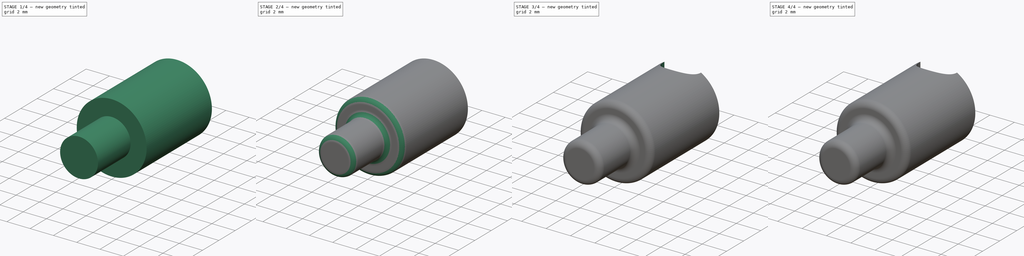
[diagram: build sequence overview — one tinted view per stage of 4, left to right]
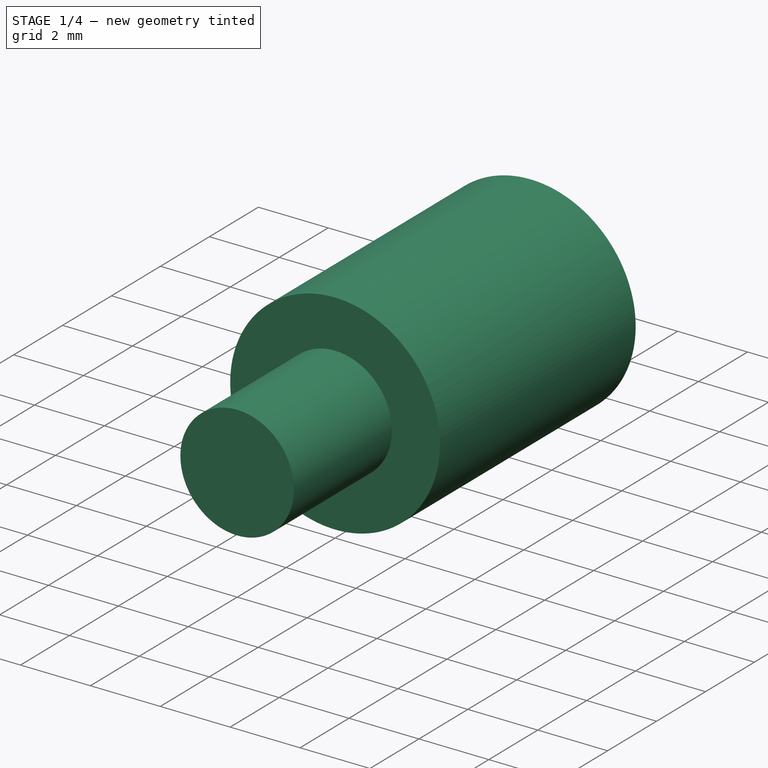
[diagram: stage 1 of 4 — iso view after this stage's code; geometry added in this stage tinted green]
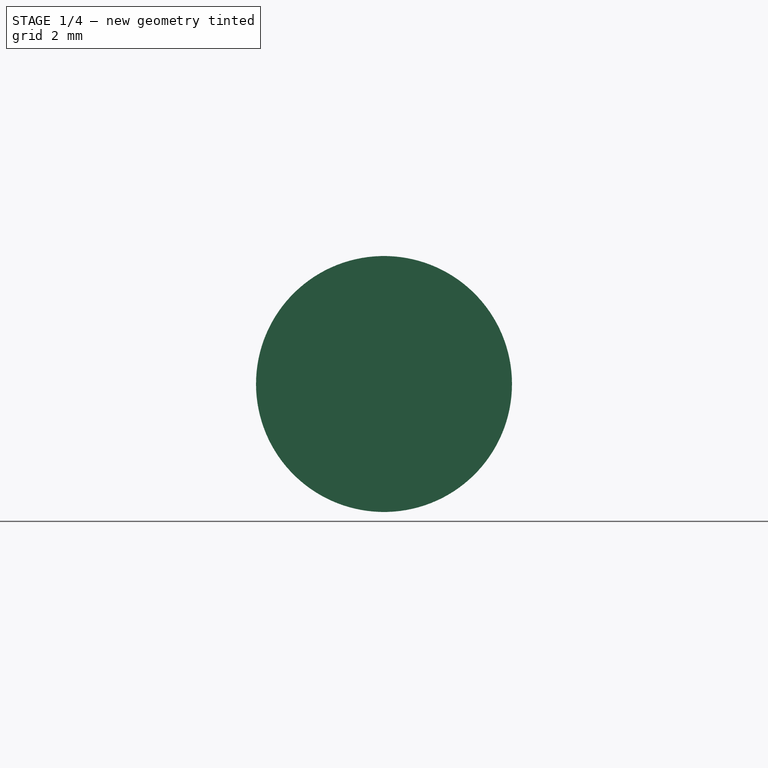
[diagram: stage 1 of 4 — front view after this stage's code; geometry added in this stage tinted green]
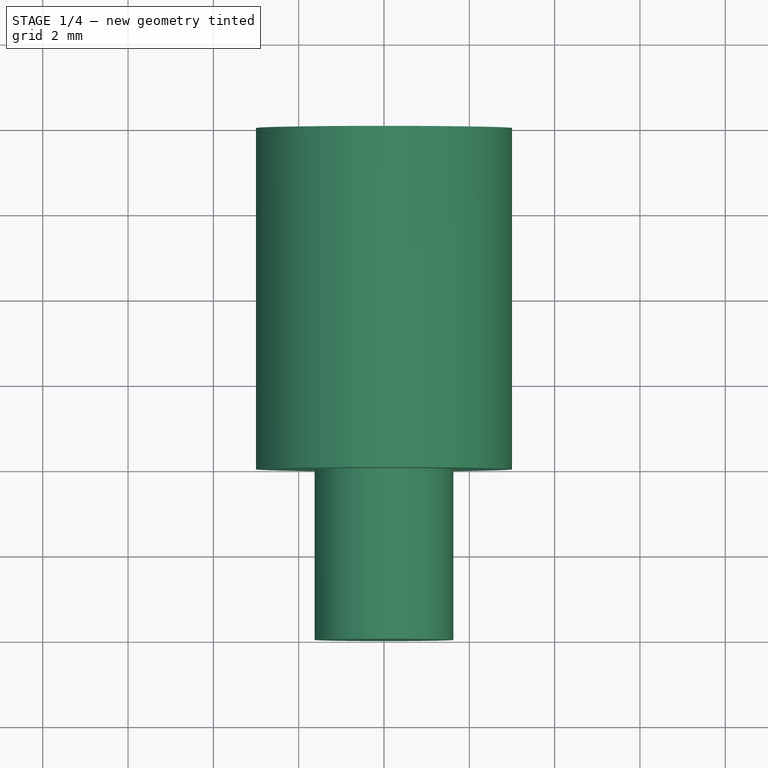
[diagram: stage 1 of 4 — top view after this stage's code; geometry added in this stage tinted green]
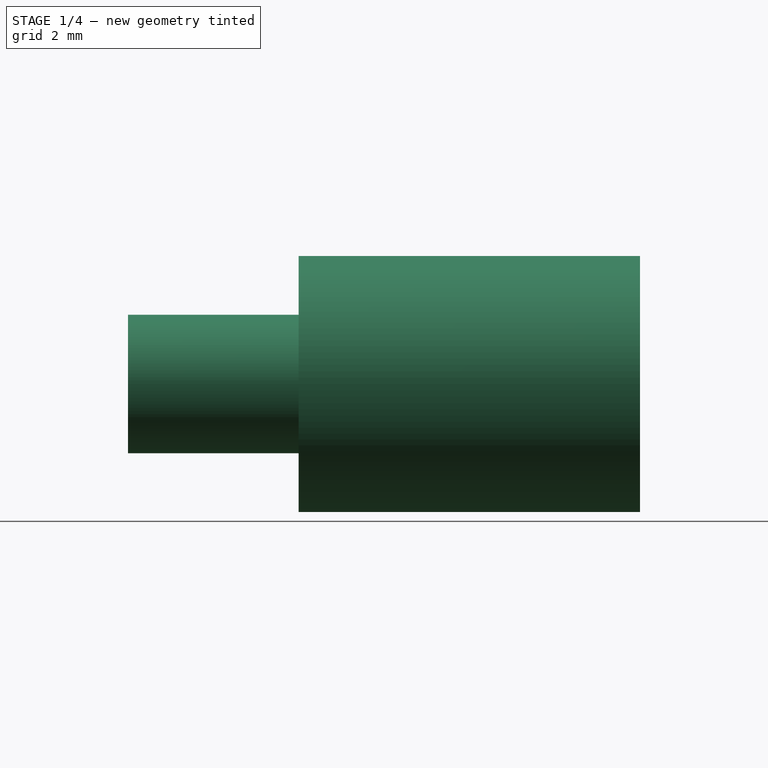
[diagram: stage 1 of 4 — right view after this stage's code; geometry added in this stage tinted green]
FCSTD DOCUMENT  (FreeCAD 0.20RUnknown)
Label: temperature-probes
License: All rights reserved
LicenseURL: http://en.wikipedia.org/wiki/All_rights_reserved
objects: Sketcher::SketchObject×11, PartDesign::Body×5, PartDesign::Pad×4, PartDesign::Pocket×3, PartDesign::Fillet×3, PartDesign::AdditivePipe×2, App::Part×2
note: 40 computed .brp shape members not serialized (recipe doc carries the construction recipe); baked Part::Feature solids carry a one-line shape summary decoded from their .brp

FEATURE [PartDesign::Body] Body004  label="ptf-lead001"
  Group = -> [Sketch008,Sketch009,AdditivePipe001]
  Origin = -> Origin006
  Placement = pos=(0,0,0.75) rot=(0,1,0;3.14159rad)
  Tip = -> AdditivePipe001
FEATURE [App::Part] Part  label="PTFC"
  Group = -> [Body,Body001,Body002,Body004]
  Origin = -> Origin
FEATURE [Sketcher::SketchObject] Sketch010
  FullyConstrained = true
  MapMode = 5
  Placement = pos=(0,0,0) rot=(1,0,0;1.5708rad)
  Support = -> [XZ_Plane007]
  sketch-geometry (1):
    g0: Circle CenterX=0 CenterY=0.2 CenterZ=0 NormalX=0 NormalY=0 NormalZ=1 AngleXU=0 Radius=3
  constraints (3):
    c: PointOnObject(g0,g-2)
    c: DistanceY(g-1,g0) = 0.2
    c: Diameter(g0) = 6
FEATURE [PartDesign::Pad] Pad002
  Direction = (0,-1,2e-16)
  Length = 8
  Length2 = 10
  Placement = pos=(0,0,0) rot=(1,0,0;1.5708rad)
  Profile = -> Sketch010
  ReferenceAxis = -> Sketch010 [N_Axis]
  Reversed = true
  Type = 0
FEATURE [Sketcher::SketchObject] Sketch011
  FullyConstrained = true
  MapMode = 5
  Placement = pos=(0,0,0) rot=(1,0,0;1.5708rad)
  Support = -> [XZ_Plane007]
  sketch-geometry (1):
    g0: Circle CenterX=0 CenterY=0.2 CenterZ=0 NormalX=0 NormalY=0 NormalZ=1 AngleXU=0 Radius=1.625
  constraints (3):
    c: PointOnObject(g0,g-2)
    c: DistanceY(g-1,g0) = 0.2
    c: Diameter(g0) = 3.25
FEATURE [PartDesign::Pad] Pad003
  BaseFeature = -> Pad002
  Direction = (0,-1,2e-16)
  Length = 4
  Length2 = 10
  Placement = pos=(0,0,0) rot=(1,0,0;1.5708rad)
  Profile = -> Sketch011
  ReferenceAxis = -> Sketch011 [N_Axis]
  Type = 0
FEATURE [Sketcher::SketchObject] Sketch012
  AttachmentOffset = pos=(0,0,-1) rot=(0,0,1;0rad)
  FullyConstrained = true
  MapMode = 5
  Placement = pos=(0,1,2e-16) rot=(1,0,0;1.5708rad)
  Support = -> [XZ_Plane007]
  sketch-geometry (1):
    g0: Circle CenterX=0 CenterY=0.2 CenterZ=0 NormalX=0 NormalY=0 NormalZ=1 AngleXU=0 Radius=2.25
  constraints (3):
    c: PointOnObject(g0,g-2)
    c: DistanceY(g-1,g0) = 0.2
    c: Diameter(g0) = 4.5
FEATURE [PartDesign::Pocket] Pocket
  BaseFeature = -> Pad003
  Direction = (0,1,-2e-16)
  Length = 5
  Length2 = 5
  Placement = pos=(0,0,0) rot=(1,0,0;1.5708rad)
  Profile = -> Sketch012
  ReferenceAxis = -> Sketch012 [N_Axis]
  Type = 1
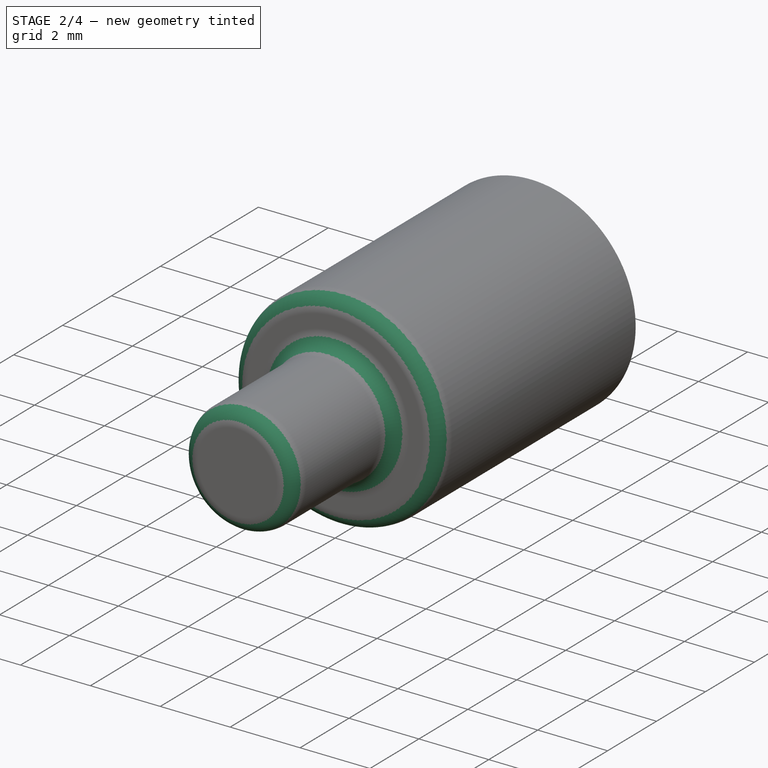
[diagram: stage 2 of 4 — iso view after this stage's code; geometry added in this stage tinted green]
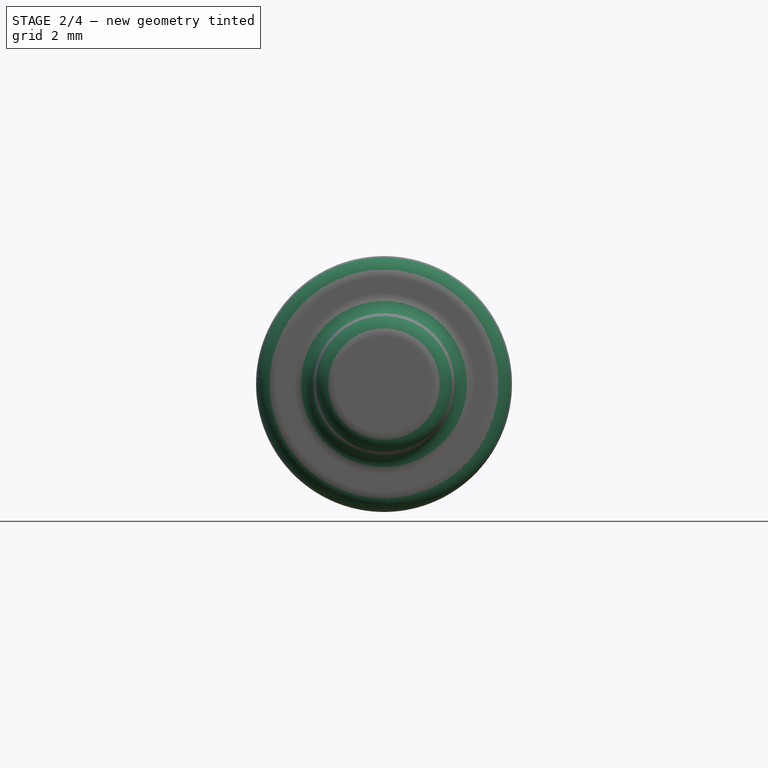
[diagram: stage 2 of 4 — front view after this stage's code; geometry added in this stage tinted green]
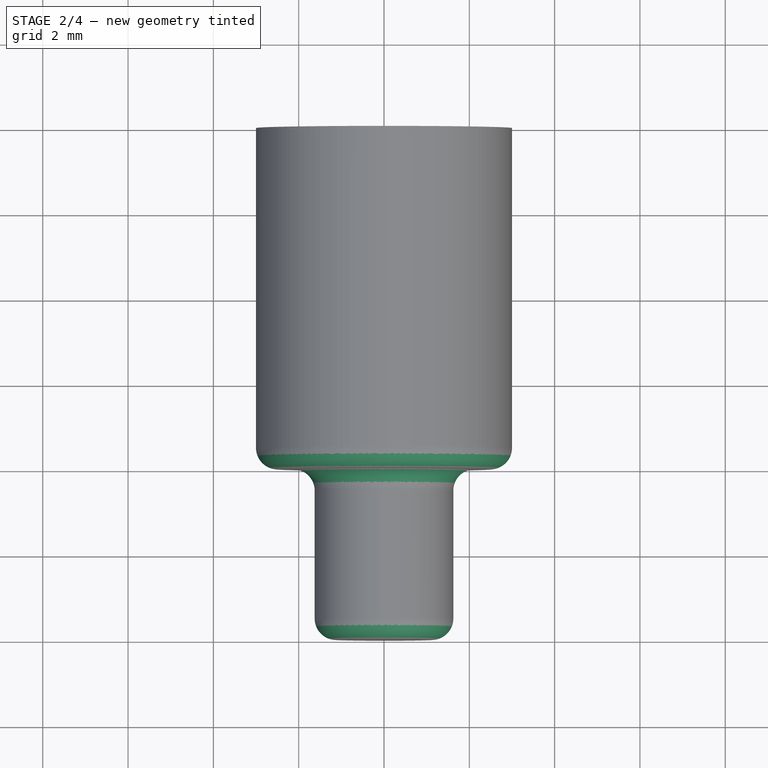
[diagram: stage 2 of 4 — top view after this stage's code; geometry added in this stage tinted green]
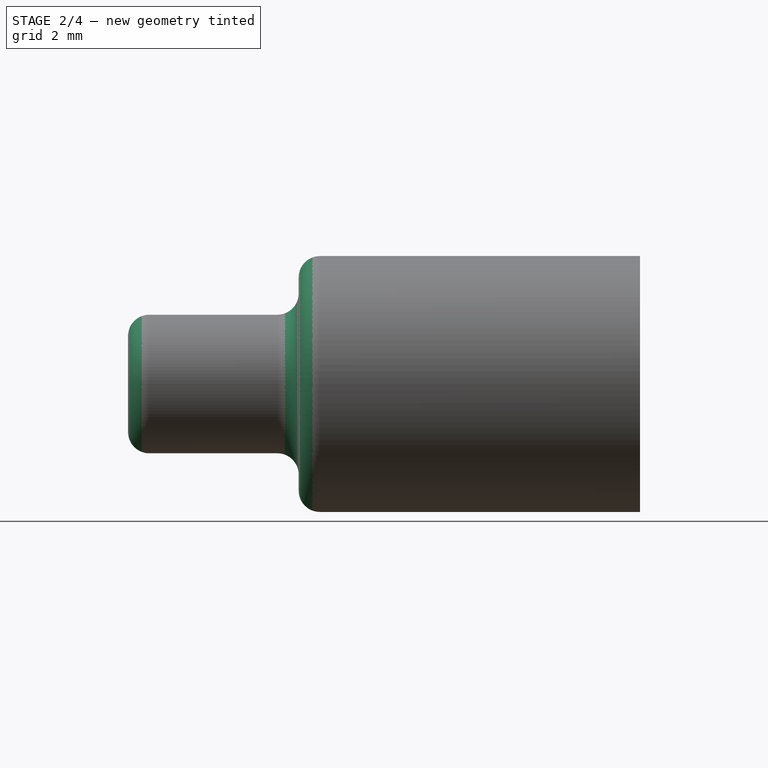
[diagram: stage 2 of 4 — right view after this stage's code; geometry added in this stage tinted green]
FEATURE [Sketcher::SketchObject] Sketch013
  AttachmentOffset = pos=(0,0,-1) rot=(0,0,1;0rad)
  FullyConstrained = true
  MapMode = 5
  Placement = pos=(0,1,2e-16) rot=(1,0,0;1.5708rad)
  Support = -> [XZ_Plane007]
  sketch-geometry (1):
    g0: Circle CenterX=0 CenterY=0.2 CenterZ=0 NormalX=0 NormalY=0 NormalZ=1 AngleXU=0 Radius=1.25
  constraints (3):
    c: PointOnObject(g0,g-2)
    c: DistanceY(g-1,g0) = 0.2
    c: Diameter(g0) = 2.5
FEATURE [PartDesign::Pocket] Pocket001
  BaseFeature = -> Pocket
  Direction = (0,1,-2e-16)
  Length = 4.5
  Length2 = 5
  Placement = pos=(0,0,0) rot=(1,0,0;1.5708rad)
  Profile = -> Sketch013
  ReferenceAxis = -> Sketch013 [N_Axis]
  Reversed = true
  Type = 0
FEATURE [PartDesign::Fillet] Fillet
  Base = -> Pocket001 [Edge7,Edge4,Edge2]
  BaseFeature = -> Pocket001
  Placement = pos=(0,0,0) rot=(1,0,0;1.5708rad)
  Radius = 0.5
  SupportTransform = false
  UseAllEdges = false
FEATURE [PartDesign::Fillet] Fillet001
  Base = -> Fillet [Edge16]
  BaseFeature = -> Fillet
  Placement = pos=(0,0,0) rot=(1,0,0;1.5708rad)
  Radius = 1
  SupportTransform = false
  UseAllEdges = false
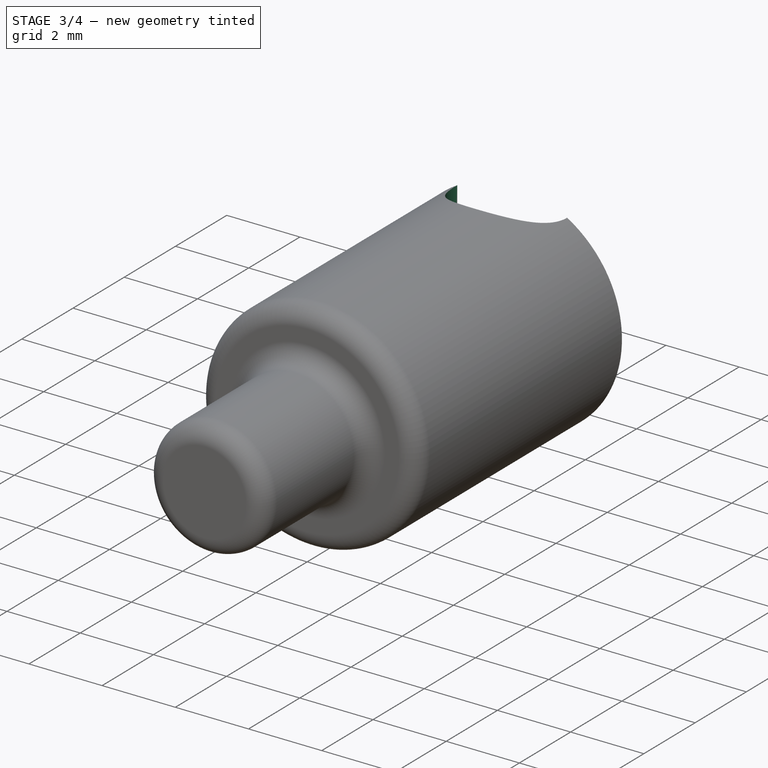
[diagram: stage 3 of 4 — iso view after this stage's code; geometry added in this stage tinted green]
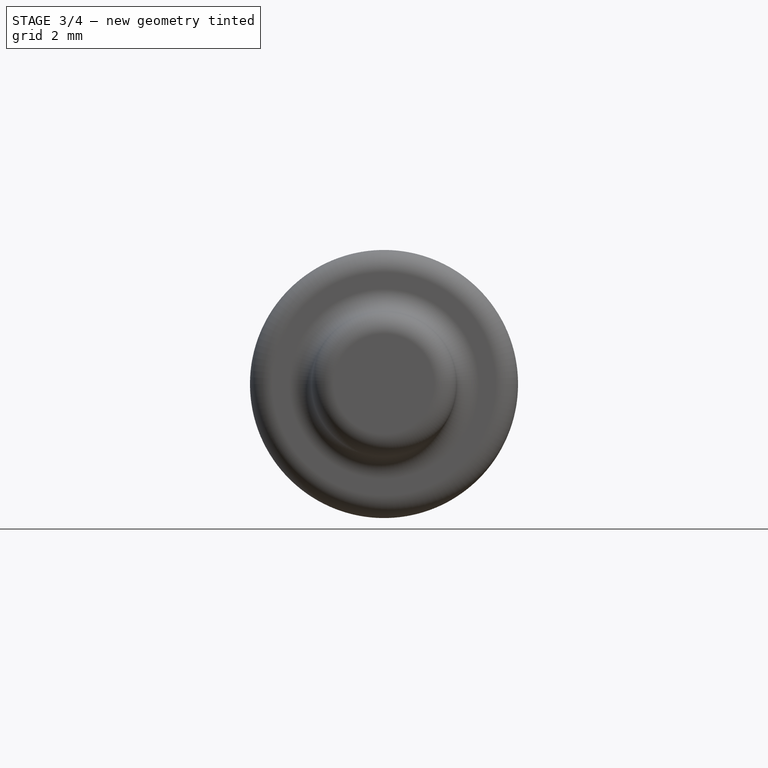
[diagram: stage 3 of 4 — front view after this stage's code; geometry added in this stage tinted green]
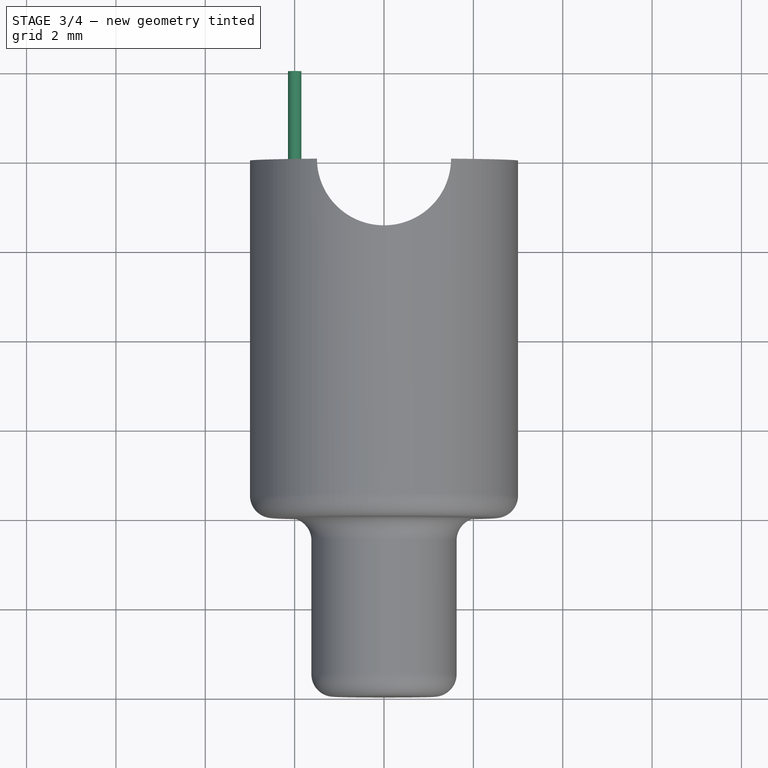
[diagram: stage 3 of 4 — top view after this stage's code; geometry added in this stage tinted green]
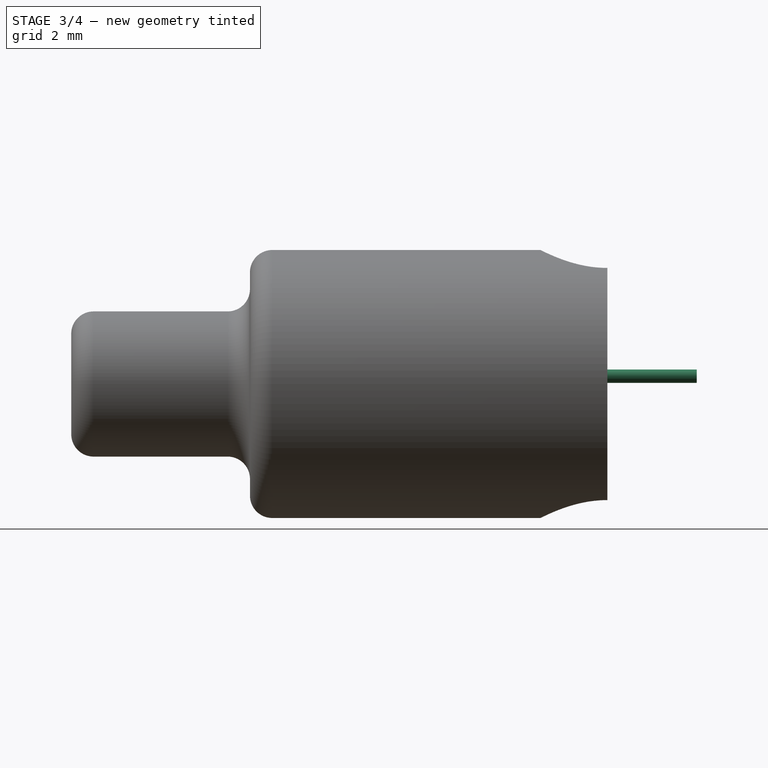
[diagram: stage 3 of 4 — right view after this stage's code; geometry added in this stage tinted green]
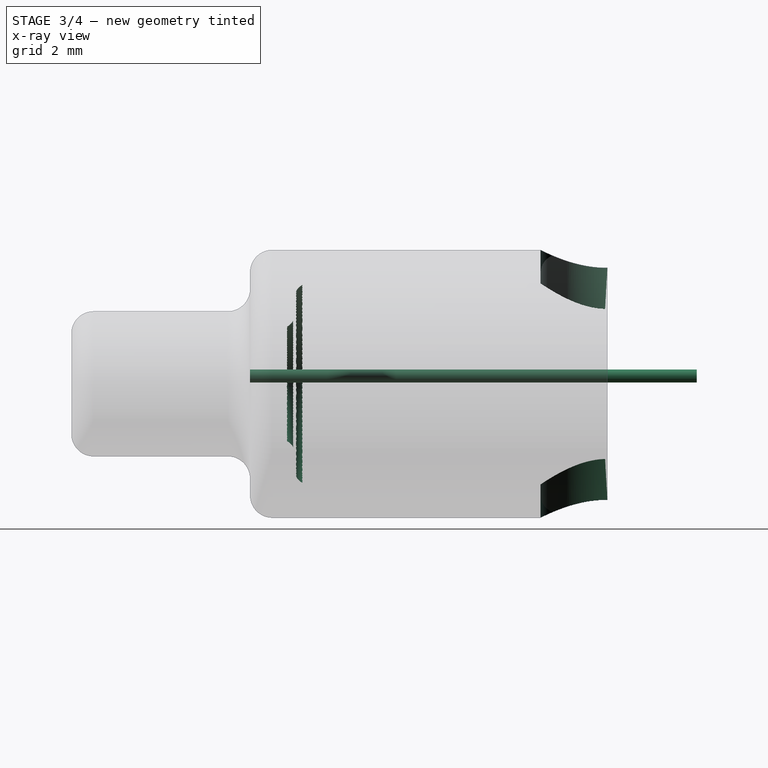
[diagram: stage 3 of 4 — x-ray composite at the right view; earlier geometry ghosted, this stage's added geometry solid]
FEATURE [PartDesign::Body] Body002  label="ptf-lead"
  Group = -> [Sketch002,Sketch007,AdditivePipe]
  Origin = -> Origin003
  Tip = -> AdditivePipe
FEATURE [Sketcher::SketchObject] Sketch008
  FullyConstrained = true
  MapMode = 5
  Placement = pos=(0,0,0) rot=(1,0,0;1.5708rad)
  Support = -> [XZ_Plane003]
  sketch-geometry (3):
    g0: Circle CenterX=-0.45 CenterY=0.375 CenterZ=0 NormalX=0 NormalY=0 NormalZ=1 AngleXU=0 Radius=0.15
    g1: LineSegment StartX=-0.45 StartY=0.375 StartZ=0 EndX=0.45 EndY=0.375 EndZ=0
    g2: GeomPoint X=0 Y=0.375 Z=0
  constraints (7):
    c: Diameter(g0) = 0.3
    c: Horizontal(g1)
    c: Coincident(g0,g1)
    c: DistanceX(g1,g1) = 0.9
    c: Symmetric(g1,g1,g2)
    c: PointOnObject(g2,g-2)
    c: DistanceY(g-1,g2) = 0.375
FEATURE [Sketcher::SketchObject] Sketch009
  AttachmentOffset = pos=(0,0,0.375) rot=(0,0,1;0rad)
  ExternalGeometry = -> [Sketch008]
  FullyConstrained = true
  MapMode = 5
  Placement = pos=(0,0,0.375) rot=(0,0,1;0rad)
  Support = -> [XY_Plane003]
  sketch-geometry (7):
    g0: LineSegment StartX=-0.45 StartY=0 StartZ=0 EndX=-0.45 EndY=1.72755 EndZ=0
    g1: LineSegment StartX=-0.678937 StartY=2.1477 StartZ=0 EndX=-1.77106 EndY=2.8523 EndZ=0
    g2: LineSegment StartX=-2 StartY=3.27245 StartZ=0 EndX=-2 EndY=10 EndZ=0
    g3: ArcOfCircle CenterX=-0.95 CenterY=1.72755 CenterZ=0 NormalX=0 NormalY=0 NormalZ=1 AngleXU=0 Radius=0.5 StartAngle=1e-16 EndAngle=0.99783
    g4: GeomPoint X=-0.45 Y=2 Z=0
    g5: ArcOfCircle CenterX=-1.5 CenterY=3.27245 CenterZ=0 NormalX=0 NormalY=0 NormalZ=1 AngleXU=0 Radius=0.5 StartAngle=3.14159 EndAngle=4.13942
    g6: GeomPoint X=-2 Y=3 Z=0
  constraints (18):
    c: PointOnObject(g0,g-1)
    c: Vertical(g0)
    c: Vertical(g2)
    c: DistanceX(g0,g-1) = 0.45
    c: Distance(g2,g6) = 7
    c: Distance(g0,g4) = 2
    c: DistanceX(g2,g-1) = 2
    c: DistanceY(g-1,g2) = 10
    c: PointOnObject(g4,g0)
    c: PointOnObject(g4,g1)
    c: Tangent(g0,g3) = -1.5708
    c: Tangent(g1,g3) = -1.5708
    c: PointOnObject(g6,g1)
    c: PointOnObject(g6,g2)
    c: Tangent(g1,g5) = 1.5708
    c: Tangent(g2,g5) = 1.5708
    c: Equal(g5,g3)
    c: Radius(g3) = 0.5
FEATURE [PartDesign::AdditivePipe] AdditivePipe001
  AuxilleryCurvelinear = true
  AuxillerySpineTangent = false
  Binormal = (0,0,0)
  Mode = 0
  Placement = pos=(0,0,0) rot=(1,0,0;1.5708rad)
  Profile = -> Sketch008
  Spine = -> Sketch009
  SpineTangent = false
  Transformation = 0
  Transition = 0
FEATURE [PartDesign::Fillet] Fillet002
  Base = -> Fillet001 [Edge3,Edge6]
  BaseFeature = -> Fillet001
  Placement = pos=(0,0,0) rot=(1,0,0;1.5708rad)
  Radius = 0.3125
  SupportTransform = false
  UseAllEdges = false
FEATURE [Sketcher::SketchObject] Sketch014
  ExternalGeometry = -> [Fillet002]
  FullyConstrained = true
  MapMode = 5
  Support = -> [XY_Plane007]
  sketch-geometry (1):
    g0: Circle CenterX=0 CenterY=8 CenterZ=0 NormalX=0 NormalY=0 NormalZ=1 AngleXU=0 Radius=1.5
  constraints (3):
    c: PointOnObject(g0,g-2)
    c: PointOnObject(g0,g-3)
    c: Diameter(g0) = 3
FEATURE [PartDesign::Pocket] Pocket002
  BaseFeature = -> Fillet002
  Direction = (0,0,-1)
  Length = 5
  Length2 = 5
  Midplane = true
  Placement = pos=(0,0,0) rot=(1,0,0;1.5708rad)
  Profile = -> Sketch014
  ReferenceAxis = -> Sketch014 [N_Axis]
  Type = 1
FEATURE [PartDesign::Body] Body005
  Group = -> [Sketch010,Pad002,Sketch011,Pad003,Sketch012,Pocket,Sketch013,Pocket001,Fillet,Fillet001,Fillet002,Sketch014,Pocket002]
  Origin = -> Origin007
  Tip = -> Pocket002
FEATURE [App::Part] Part001  label="ptfc-housing"
  Group = -> [Body005]
  Origin = -> Origin004
  Placement = pos=(0,1.25,0) rot=(0,0,1;0rad)
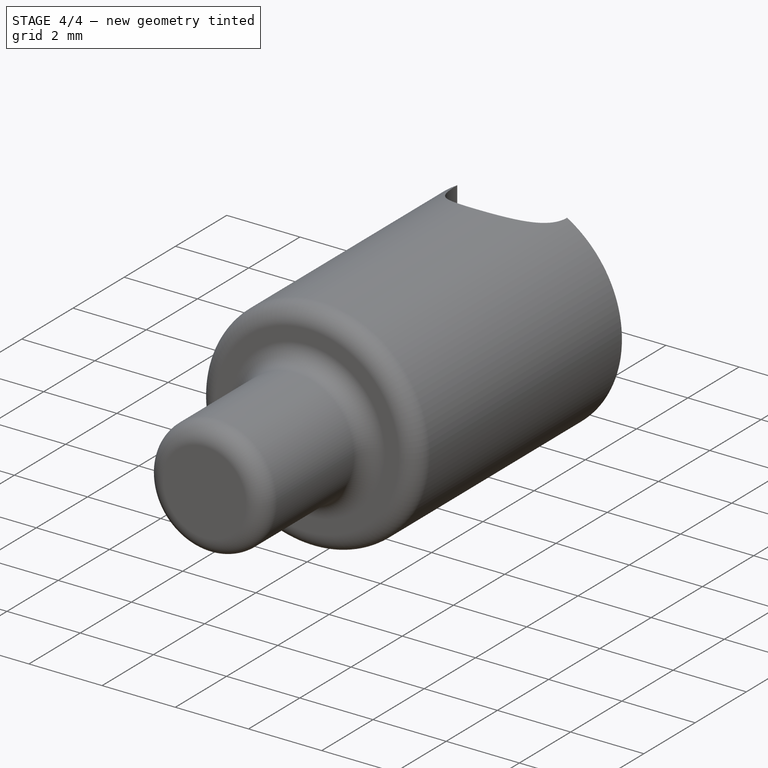
[diagram: stage 4 of 4 — iso view after this stage's code; geometry added in this stage tinted green]
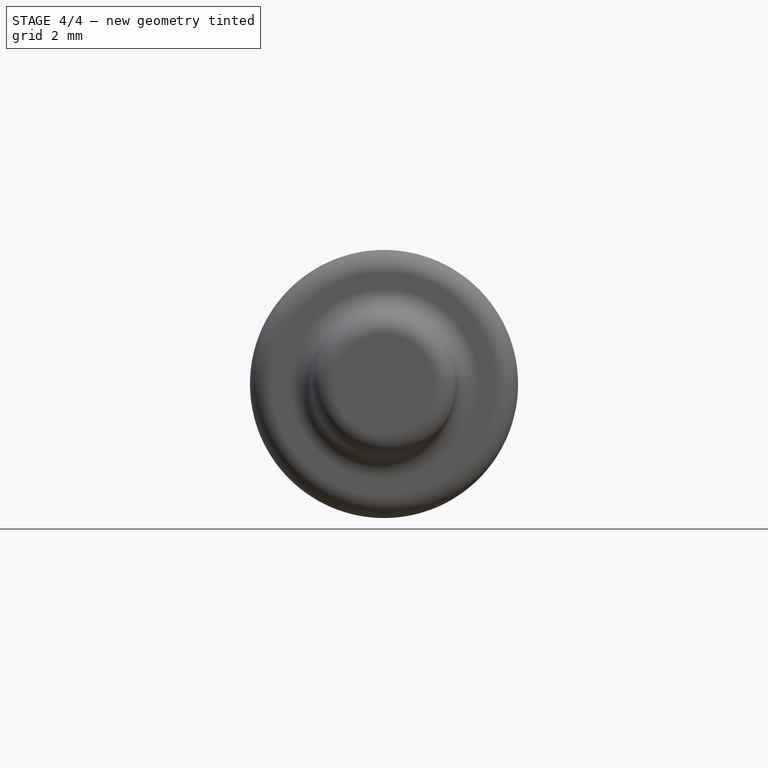
[diagram: stage 4 of 4 — front view after this stage's code; geometry added in this stage tinted green]
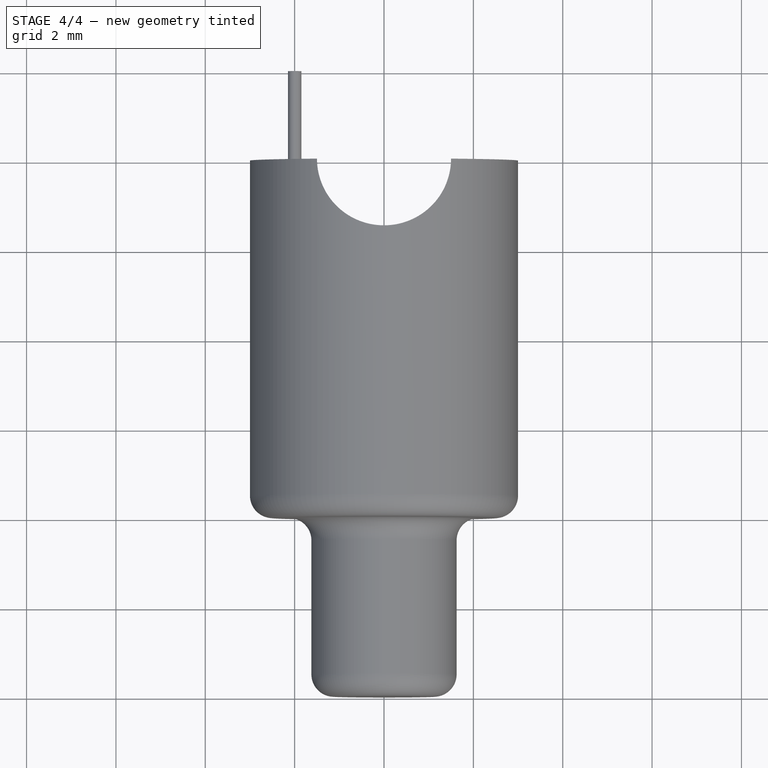
[diagram: stage 4 of 4 — top view after this stage's code; geometry added in this stage tinted green]
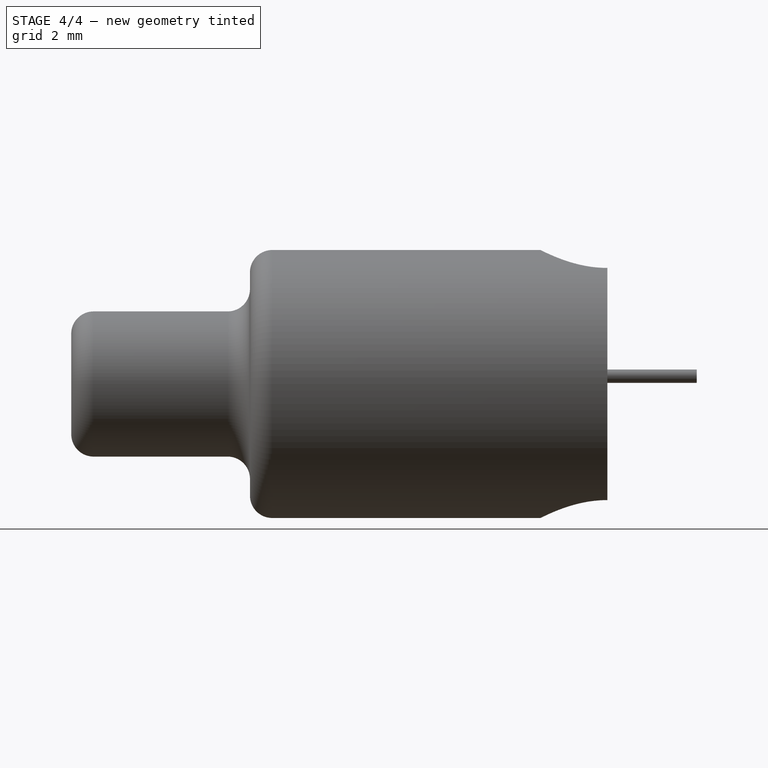
[diagram: stage 4 of 4 — right view after this stage's code; geometry added in this stage tinted green]
FEATURE [Sketcher::SketchObject] Sketch
  FullyConstrained = true
  MapMode = 5
  Placement = pos=(0,0,0) rot=(0.57735,0.57735,0.57735;2.0944rad)
  Support = -> [YZ_Plane001]
  sketch-geometry (5):
    g0: LineSegment StartX=-1.15 StartY=-0.2 StartZ=0 EndX=-1.15 EndY=0.2 EndZ=0
    g1: LineSegment StartX=-1.15 StartY=0.2 StartZ=0 EndX=1.15 EndY=0.2 EndZ=0
    g2: LineSegment StartX=1.15 StartY=0.2 StartZ=0 EndX=1.15 EndY=-0.2 EndZ=0
    g3: LineSegment StartX=1.15 StartY=-0.2 StartZ=0 EndX=-1.15 EndY=-0.2 EndZ=0
    g4: GeomPoint X=0 Y=-1e-16 Z=0
  constraints (12):
    c: Coincident(g0,g1)
    c: Coincident(g1,g2)
    c: Coincident(g2,g3)
    c: Coincident(g3,g0)
    c: Horizontal(g1)
    c: Horizontal(g3)
    c: Vertical(g0)
    c: Vertical(g2)
    c: Symmetric(g1,g0,g4)
    c: Coincident(g4,g-1)
    c: DistanceX(g3,g3) = 2.3
    c: DistanceY(g0,g0) = 0.4
FEATURE [PartDesign::Pad] Pad
  Direction = (1,-2e-16,3e-16)
  Length = 2
  Length2 = 10
  Midplane = true
  Placement = pos=(0,0,0) rot=(0.57735,0.57735,0.57735;2.0944rad)
  Profile = -> Sketch
  ReferenceAxis = -> Sketch [N_Axis]
  Type = 0
FEATURE [PartDesign::Body] Body  label="ptf-pad"
  Group = -> [Sketch,Pad]
  Origin = -> Origin001
  Tip = -> Pad
FEATURE [Sketcher::SketchObject] Sketch001
  FullyConstrained = true
  MapMode = 5
  Placement = pos=(0,0,0) rot=(0.57735,0.57735,0.57735;2.0944rad)
  Support = -> [YZ_Plane002]
  sketch-geometry (4):
    g0: ArcOfCircle CenterX=0.25 CenterY=-0.36 CenterZ=0 NormalX=0 NormalY=0 NormalZ=1 AngleXU=0 Radius=1.06 StartAngle=0.556599 EndAngle=2.58499
    g1: LineSegment StartX=-0.749997 StartY=0.7 StartZ=0 EndX=1.25 EndY=0.7 EndZ=0
    g2: GeomPoint X=0.250003 Y=0.7 Z=0
    g3: LineSegment StartX=-0.65 StartY=0.2 StartZ=0 EndX=1.15 EndY=0.2 EndZ=0
  constraints (12):
    c: DistanceY(g-1,g0) = 0.2
    c: DistanceY(g-1,g0) = 0.2
    c: DistanceX(g-1,g0) = 1.15
    c: DistanceX(g0,g0) = 1.8
    c: Horizontal(g1)
    c: Symmetric(g1,g1,g2)
    c: PointOnObject(g2,g0)
    c: Tangent(g0,g1)
    c: DistanceX(g1,g1) = 2
    c: DistanceY(g-1,g2) = 0.7
    c: Coincident(g3,g0)
    c: Coincident(g3,g0)
FEATURE [PartDesign::Pad] Pad001
  Direction = (1,-2e-16,3e-16)
  Length = 2
  Length2 = 10
  Midplane = true
  Placement = pos=(0,0,0) rot=(0.57735,0.57735,0.57735;2.0944rad)
  Profile = -> Sketch001
  ReferenceAxis = -> Sketch001 [N_Axis]
  Type = 0
FEATURE [PartDesign::Body] Body001  label="ptf-glass"
  Group = -> [Sketch001,Pad001]
  Origin = -> Origin002
  Tip = -> Pad001
FEATURE [Sketcher::SketchObject] Sketch002
  FullyConstrained = true
  MapMode = 5
  Placement = pos=(0,0,0) rot=(1,0,0;1.5708rad)
  Support = -> [XZ_Plane003]
  sketch-geometry (3):
    g0: Circle CenterX=-0.45 CenterY=0.375 CenterZ=0 NormalX=0 NormalY=0 NormalZ=1 AngleXU=0 Radius=0.15
    g1: LineSegment StartX=-0.45 StartY=0.375 StartZ=0 EndX=0.45 EndY=0.375 EndZ=0
    g2: GeomPoint X=0 Y=0.375 Z=0
  constraints (7):
    c: Diameter(g0) = 0.3
    c: Horizontal(g1)
    c: Coincident(g0,g1)
    c: DistanceX(g1,g1) = 0.9
    c: Symmetric(g1,g1,g2)
    c: PointOnObject(g2,g-2)
    c: DistanceY(g-1,g2) = 0.375
FEATURE [Sketcher::SketchObject] Sketch007
  AttachmentOffset = pos=(0,0,0.375) rot=(0,0,1;0rad)
  ExternalGeometry = -> [Sketch002]
  FullyConstrained = true
  MapMode = 5
  Placement = pos=(0,0,0.375) rot=(0,0,1;0rad)
  Support = -> [XY_Plane003]
  sketch-geometry (7):
    g0: LineSegment StartX=-0.45 StartY=0 StartZ=0 EndX=-0.45 EndY=1.72755 EndZ=0
    g1: LineSegment StartX=-0.678937 StartY=2.1477 StartZ=0 EndX=-1.77106 EndY=2.8523 EndZ=0
    g2: LineSegment StartX=-2 StartY=3.27245 StartZ=0 EndX=-2 EndY=10 EndZ=0
    g3: ArcOfCircle CenterX=-0.95 CenterY=1.72755 CenterZ=0 NormalX=0 NormalY=0 NormalZ=1 AngleXU=0 Radius=0.5 StartAngle=1e-16 EndAngle=0.99783
    g4: GeomPoint X=-0.45 Y=2 Z=0
    g5: ArcOfCircle CenterX=-1.5 CenterY=3.27245 CenterZ=0 NormalX=0 NormalY=0 NormalZ=1 AngleXU=0 Radius=0.5 StartAngle=3.14159 EndAngle=4.13942
    g6: GeomPoint X=-2 Y=3 Z=0
  constraints (18):
    c: PointOnObject(g0,g-1)
    c: Vertical(g0)
    c: Vertical(g2)
    c: DistanceX(g0,g-1) = 0.45
    c: Distance(g2,g6) = 7
    c: Distance(g0,g4) = 2
    c: DistanceX(g2,g-1) = 2
    c: DistanceY(g-1,g2) = 10
    c: PointOnObject(g4,g0)
    c: PointOnObject(g4,g1)
    c: Tangent(g0,g3) = -1.5708
    c: Tangent(g1,g3) = -1.5708
    c: PointOnObject(g6,g1)
    c: PointOnObject(g6,g2)
    c: Tangent(g1,g5) = 1.5708
    c: Tangent(g2,g5) = 1.5708
    c: Equal(g5,g3)
    c: Radius(g3) = 0.5
FEATURE [PartDesign::AdditivePipe] AdditivePipe
  AuxilleryCurvelinear = true
  AuxillerySpineTangent = false
  Binormal = (0,0,0)
  Mode = 0
  Placement = pos=(0,0,0) rot=(1,0,0;1.5708rad)
  Profile = -> Sketch002
  Spine = -> Sketch007
  SpineTangent = false
  Transformation = 0
  Transition = 0
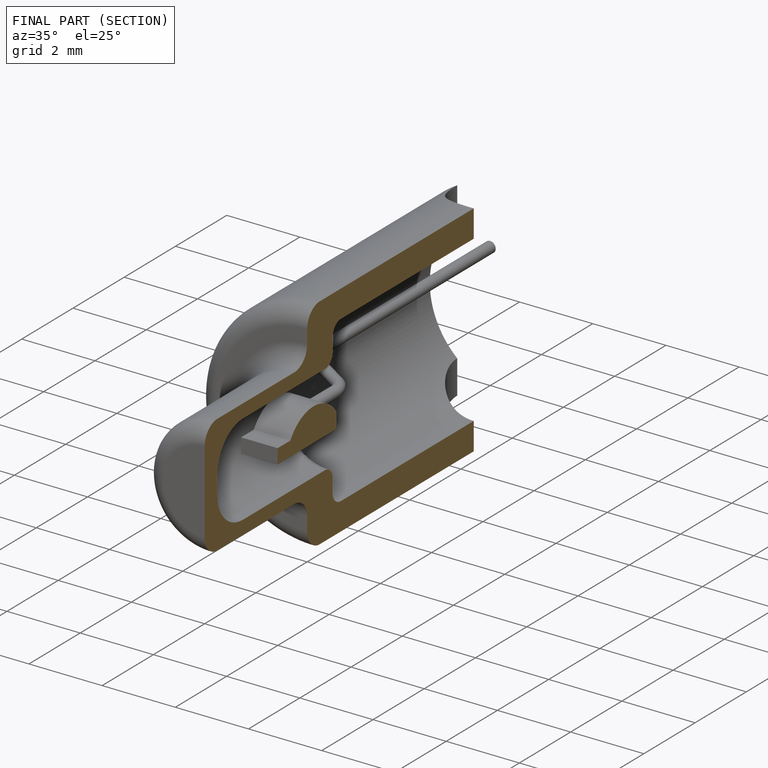
[diagram: finished part — half-section view (interior)]
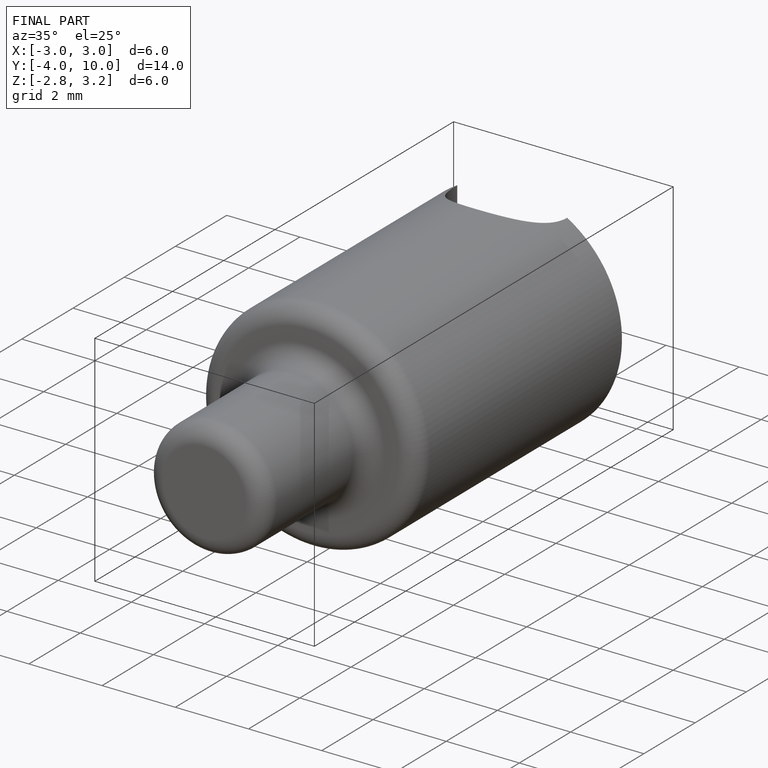
[diagram: finished part — iso view with bounding-box wireframe]
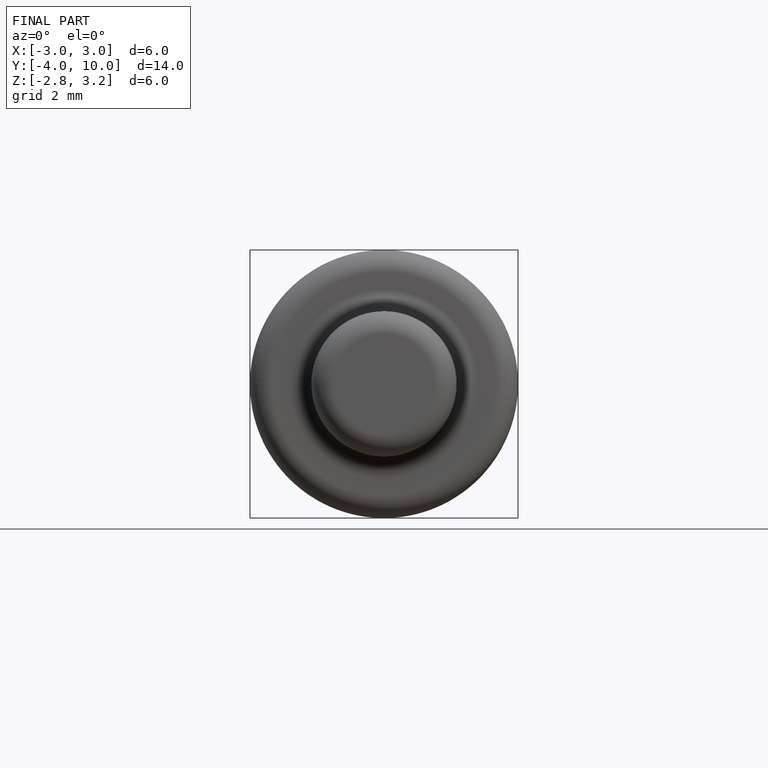
[diagram: finished part — front view with bounding-box wireframe]
